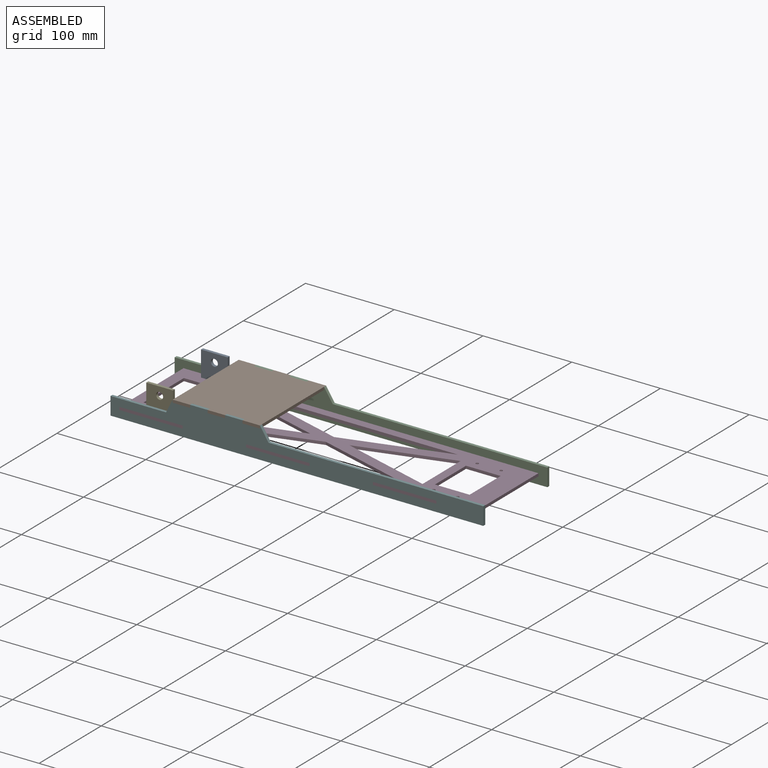
[diagram: assembled view]
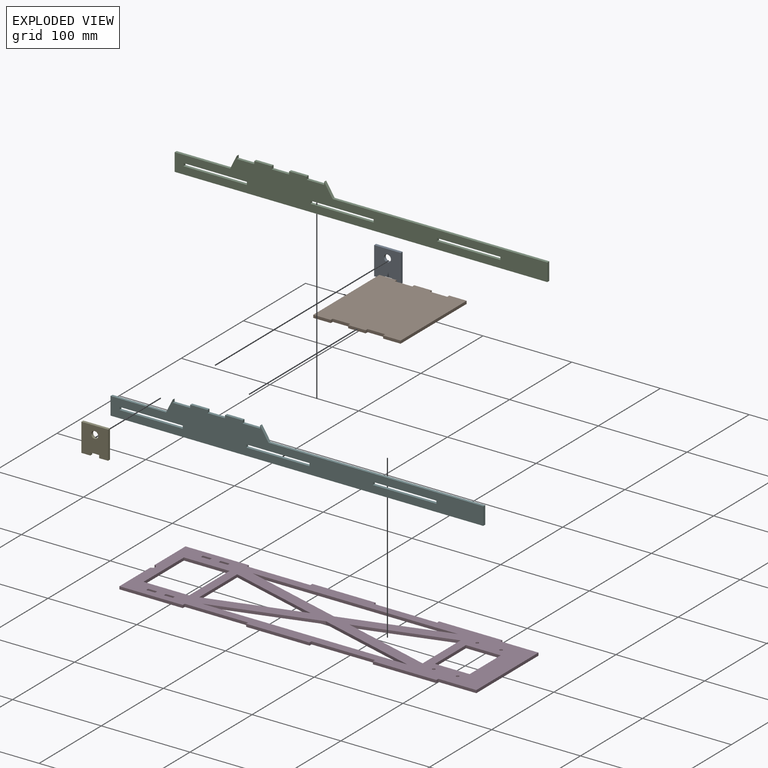
[diagram: exploded view]
GUIDED TOUR — MATED ASSEMBLY (Onshape document d849d121dfd26ec1d9eef098, AutoMate assembly d849d121dfd26ec1d9eef098_76168d8b41141996602a5c66_155ecb93dddd94bb37e16aa6_default)

This assembly has 6 components, labeled P0..P5 below (a component is one placed occurrence of a part; the same part can appear more than once), held together by 5 mates. A mate is a constraint between two components; its type names the relative motion it leaves free:
  FASTENED — locks the two components together rigidly (no relative motion).
Axis/direction vectors are unit vectors and 'through' points are millimeter coordinates, both in the assembly's world frame.

MATES
  1. FASTENED "Fastened 1": P3 <-> P2, direction (0.000, 0.000, 1.000) through (-277.78, 48.72, 194.01) mm
  2. FASTENED "Fastened 4": P4 <-> P3, direction (0.000, -1.000, 0.000) through (-294.20, -50.13, 190.83) mm
  3. FASTENED "Fastened 3": P0 <-> P3, direction (0.000, -1.000, 0.000) through (-324.20, 38.05, 190.83) mm
  4. FASTENED "Fastened 2": P5 <-> P3, direction (0.000, 0.000, -1.000) through (-277.78, -57.63, 194.01) mm
  5. FASTENED "Fastened 5": P1 <-> P2, direction (0.000, 0.000, -1.000) through (-289.21, 48.72, 214.24) mm

ASSEMBLY ORDER
  1. P5 — the base component [order verified]
  2. P1 [order verified]
  3. P2 [order verified]
  4. P3 [order verified]
  5. P4 [order verified]
  6. P0 [order verified]
Order-tag legend:
  [order verified] — this step's position reverses a verified removal order: the component was checked to insert without passing through the ones already placed.

Of the 6 components, 6 carry the full construction recipe — the FeatureScript program that regenerates the part's solid from scratch; the rest are supplied as boundary geometry only.
Each toured component is shown spotlighted twice — in the assembled view, then in the exploded view, where a leader line traces a displaced component back to its assembled socket (saturated green if recipe-attached, orange if geometry-only; every other component desaturated gray) — followed by its recipe or geometry summary and the mates that hold it.
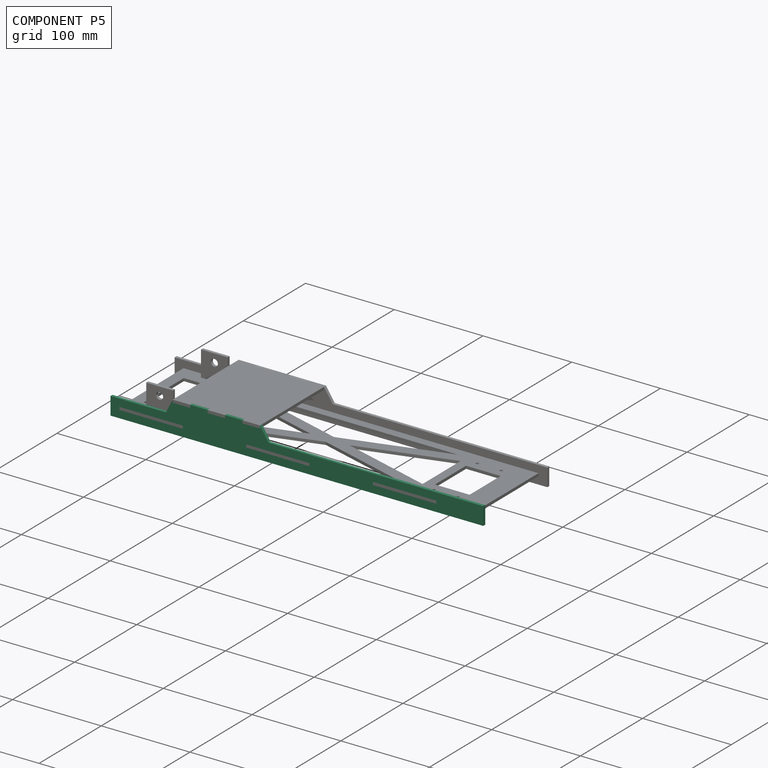
[diagram: component P5 — assembled]
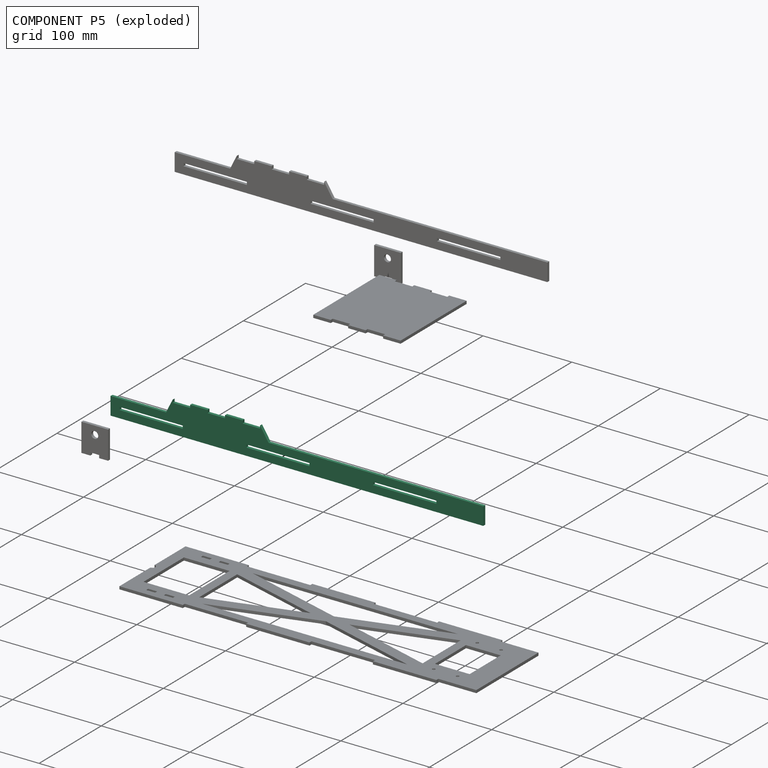
[diagram: component P5 — exploded]
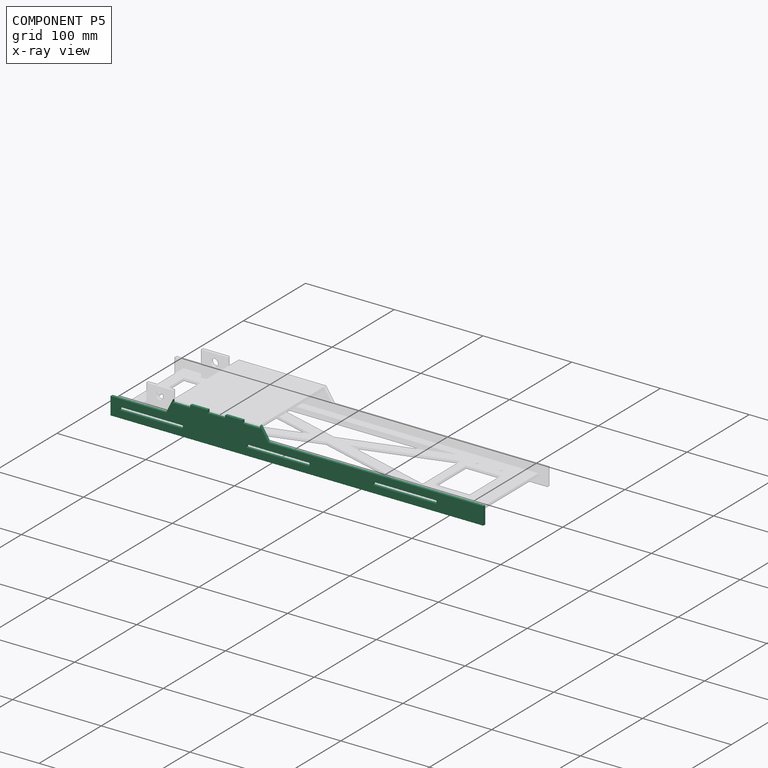
[diagram: component P5 — x-ray view]
COMPONENT P5 — same part as P2 (CADFS 00982040); its construction recipe is shown at P2.
Held by: FASTENED mate "Fastened 2" to P3.
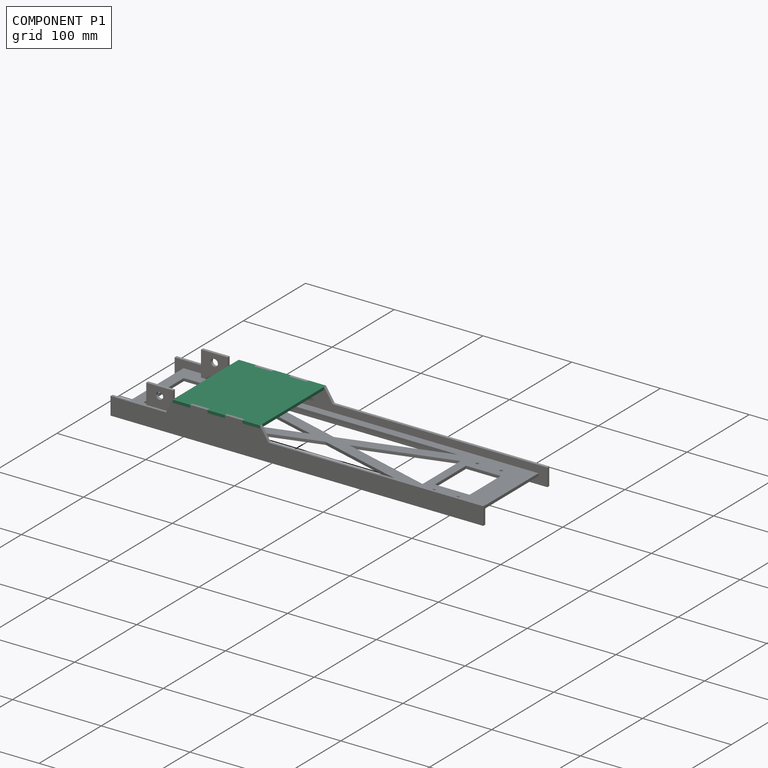
[diagram: component P1 — assembled]
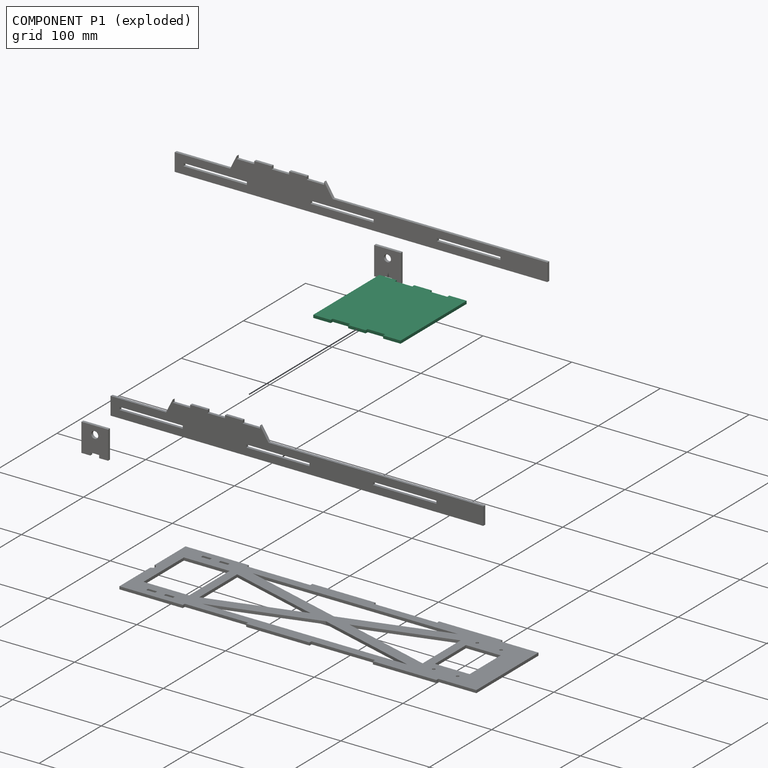
[diagram: component P1 — exploded]
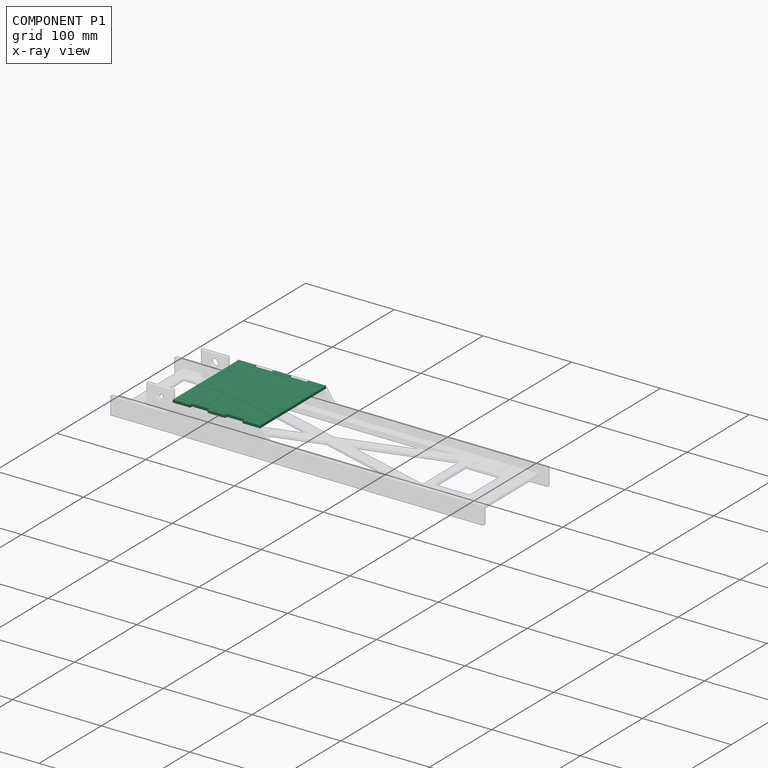
[diagram: component P1 — x-ray view]
COMPONENT P1 — recipe-attached (CADFS 00982042, mesh-verified: the recipe's output STEP matches this component's geometry to below the mesh-comparison resolution (tessellation chordal tolerance ~0.217 mm)).
Held by: FASTENED mate "Fastened 5" to P2.
Construction recipe (FeatureScript — the CAD program that rebuilds this solid; sketch coordinates are in the units given by the * unit suffixes, e.g. mm):

FeatureScript 1511;
import(path : "onshape/std/geometry.fs", version : "1511.0");
import(path : "onshape/std/common.fs", version : "1511.0");
const mm = millimeter;
const VERTEX = EntityType.VERTEX;
const EDGE = EntityType.EDGE;
const FACE = EntityType.FACE;
const BODY = EntityType.BODY;
function v(x, y){return vector(x, y);}
function OD(order){return orderDisambiguation(order);}
function OSD(set){return originalSetDisambiguation(set);}
function TD(topology){return topologyDisambiguation(topology);}
function TDD(query){return trueDependencyDisambiguation(query);}
function sQuery(a, b, c) {return sketchEntityQuery(a, b, c);}

annotation { "Feature Type Name" : "Feature", "Feature Type Description" : "" }
export const myFeature = defineFeature(function(context is Context, id is Id, definition is map)
    precondition{}
    {
        {
            var Q0;
            Q0=qCreatedBy(makeId("Top.planeOp"),FACE);
            var sketch = newSketch(context, id + "F0", { "sketchPlane" : qUnion([Q0])});
            skLineSegment(sketch, "E0.bottom", {"start": v(49.21, -65) * mm, "end": v(-49.21, -65) * mm, "construction": true});
            skLineSegment(sketch, "E0.top", {"start": v(49.21, 35) * mm, "end": v(-49.21, 35) * mm, "construction": true});
            skPoint(sketch, "E0.middle", {"position": v(0, 0) * mm});
            skLineSegment(sketch, "E1.top", {"start": v(-49.21, 38.17) * mm, "end": v(-29.53, 38.17) * mm});
            skLineSegment(sketch, "E1.left", {"start": v(-49.21, 35) * mm, "end": v(-49.21, 38.17) * mm});
            skLineSegment(sketch, "E1.right", {"start": v(-29.53, 35) * mm, "end": v(-29.53, 38.17) * mm});
            skLineSegment(sketch, "E2.top", {"start": v(49.21, 38.18) * mm, "end": v(29.53, 38.18) * mm});
            skLineSegment(sketch, "E2.left", {"start": v(49.21, 35) * mm, "end": v(49.21, 38.18) * mm});
            skLineSegment(sketch, "E2.right", {"start": v(29.53, 35) * mm, "end": v(29.53, 38.18) * mm});
            skLineSegment(sketch, "E3.top", {"start": v(-9.84, 38.18) * mm, "end": v(9.84, 38.18) * mm});
            skLineSegment(sketch, "E3.left", {"start": v(-9.84, 35) * mm, "end": v(-9.84, 38.18) * mm});
            skLineSegment(sketch, "E3.right", {"start": v(9.84, 35) * mm, "end": v(9.84, 38.18) * mm});
            skLineSegment(sketch, "E4", {"start": v(-29.53, 35) * mm, "end": v(-9.84, 35) * mm});
            skLineSegment(sketch, "E5", {"start": v(9.84, 35) * mm, "end": v(29.53, 35) * mm});
            skLineSegment(sketch, "E6.MirrorCS", {"start": v(-49.21, -65) * mm, "end": v(-49.21, -68.17) * mm});
            skLineSegment(sketch, "E7.MirrorCS", {"start": v(29.53, -65) * mm, "end": v(29.53, -68.18) * mm});
            skLineSegment(sketch, "E8.MirrorCS", {"start": v(-9.84, -65) * mm, "end": v(-9.84, -68.18) * mm});
            skLineSegment(sketch, "E9.MirrorCS", {"start": v(-29.53, -65) * mm, "end": v(-29.53, -68.17) * mm});
            skLineSegment(sketch, "E10.MirrorCS", {"start": v(9.84, -65) * mm, "end": v(9.84, -68.18) * mm});
            skLineSegment(sketch, "E11.MirrorCS", {"start": v(49.21, -65) * mm, "end": v(49.21, -68.18) * mm});
            skLineSegment(sketch, "E12.MirrorCS", {"start": v(9.84, -65) * mm, "end": v(29.53, -65) * mm});
            skLineSegment(sketch, "E13.MirrorCS", {"start": v(-29.53, -65) * mm, "end": v(-9.84, -65) * mm});
            skLineSegment(sketch, "E14.MirrorCS", {"start": v(49.21, -68.18) * mm, "end": v(29.53, -68.17) * mm});
            skLineSegment(sketch, "E15.MirrorCS", {"start": v(-49.21, -68.17) * mm, "end": v(-29.53, -68.17) * mm});
            skLineSegment(sketch, "E16.MirrorCS", {"start": v(-9.84, -68.18) * mm, "end": v(9.84, -68.18) * mm});
            skLineSegment(sketch, "E17", {"start": v(-49.21, 35) * mm, "end": v(-49.21, -65) * mm});
            skLineSegment(sketch, "E18", {"start": v(49.21, 35) * mm, "end": v(49.21, -65) * mm});
            skSolve(sketch);
        }
        {
            var Q0;
            Q0 = qSketchRegion(id + "F0", true);
            extrude(context, id + "F1", {"entities" : qUnion([Q0]), "depth" : 3.17 * mm, "offsetDistance" : 25 * mm});
        }
    });
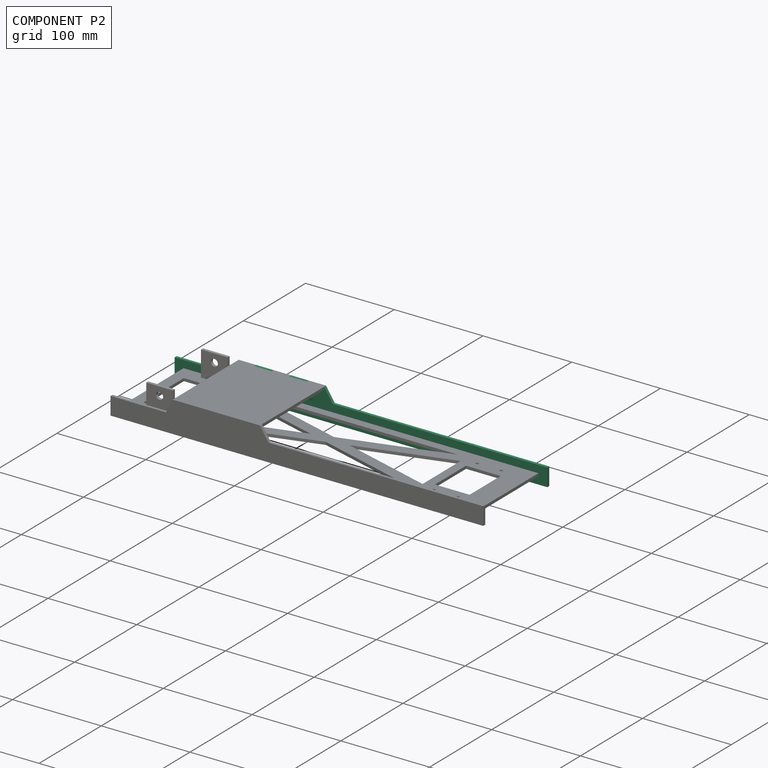
[diagram: component P2 — assembled]
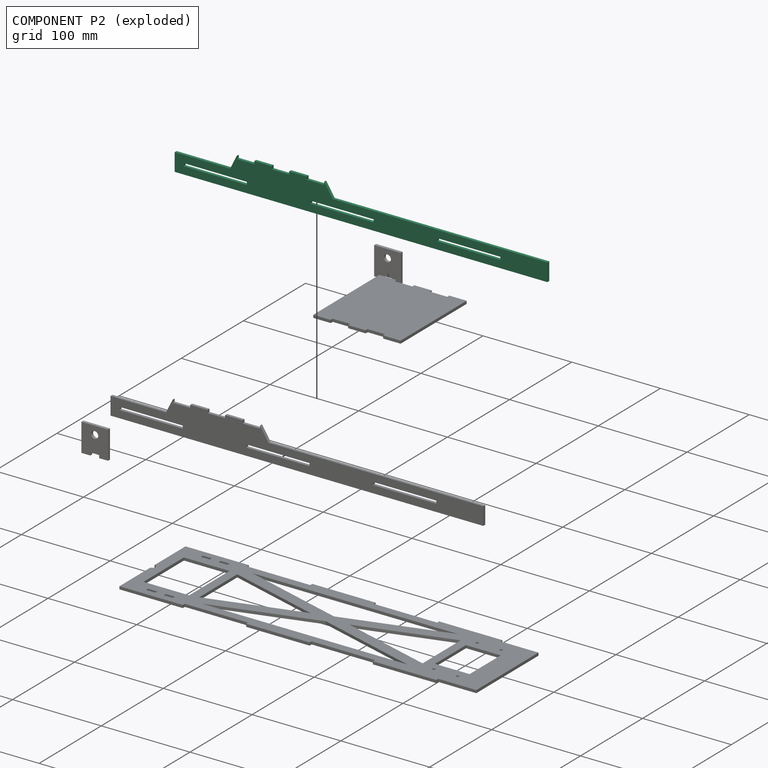
[diagram: component P2 — exploded]
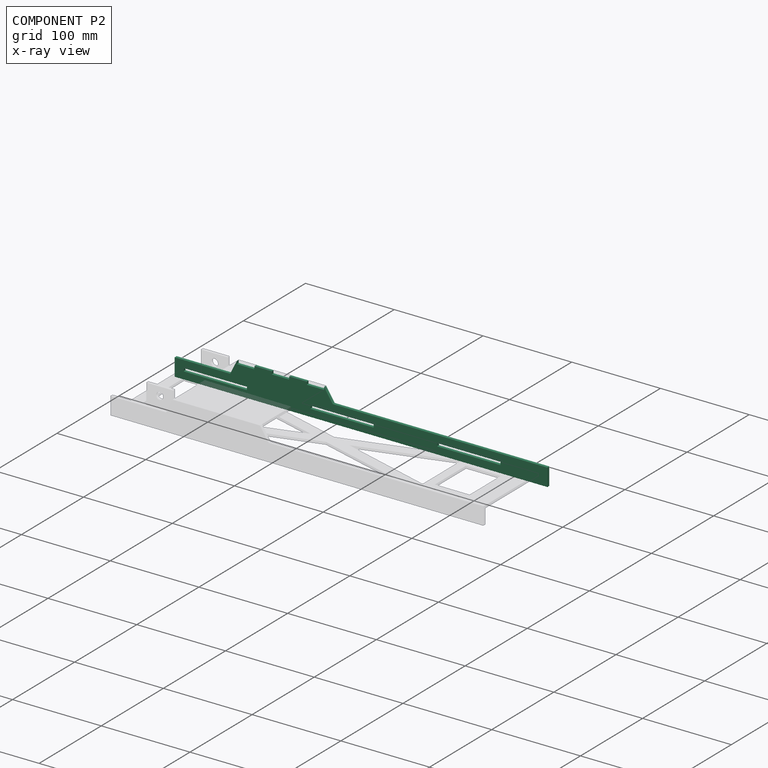
[diagram: component P2 — x-ray view]
COMPONENT P2 — recipe-attached (CADFS 00982040, mesh-verified: the recipe's output STEP matches this component's geometry to below the mesh-comparison resolution (tessellation chordal tolerance ~0.632 mm)).
Held by: FASTENED mate "Fastened 1" to P3; FASTENED mate "Fastened 5" to P1.
Construction recipe (FeatureScript — the CAD program that rebuilds this solid; sketch coordinates are in the units given by the * unit suffixes, e.g. mm):

FeatureScript 1511;
import(path : "onshape/std/geometry.fs", version : "1511.0");
import(path : "onshape/std/common.fs", version : "1511.0");
const mm = millimeter;
const VERTEX = EntityType.VERTEX;
const EDGE = EntityType.EDGE;
const FACE = EntityType.FACE;
const BODY = EntityType.BODY;
function v(x, y){return vector(x, y);}
function OD(order){return orderDisambiguation(order);}
function OSD(set){return originalSetDisambiguation(set);}
function TD(topology){return topologyDisambiguation(topology);}
function TDD(query){return trueDependencyDisambiguation(query);}
function sQuery(a, b, c) {return sketchEntityQuery(a, b, c);}

annotation { "Feature Type Name" : "Feature", "Feature Type Description" : "" }
export const myFeature = defineFeature(function(context is Context, id is Id, definition is map)
    precondition{}
    {
        {
            var Q0;
            Q0=qCreatedBy(makeId("Front.planeOp"),FACE);
            var sketch = newSketch(context, id + "F0", { "sketchPlane" : qUnion([Q0])});
            skLineSegment(sketch, "E0.right", {"start": v(-260, -10) * mm, "end": v(-260, 10) * mm});
            skPoint(sketch, "E0.middle", {"position": v(0, 0) * mm});
            skLineSegment(sketch, "E1.bottom", {"start": v(35.71, -1.59) * mm, "end": v(-35.71, -1.59) * mm, "construction": true});
            skLineSegment(sketch, "E1.top", {"start": v(35.71, 1.59) * mm, "end": v(-35.71, 1.59) * mm, "construction": true});
            skLineSegment(sketch, "E1.left", {"start": v(35.71, -1.59) * mm, "end": v(35.71, 1.59) * mm, "construction": true});
            skLineSegment(sketch, "E1.right", {"start": v(-35.71, -1.59) * mm, "end": v(-35.71, 1.59) * mm});
            skLineSegment(sketch, "E2.1.0.0", {"start": v(107.14, 1.59) * mm, "end": v(35.71, 1.59) * mm});
            skLineSegment(sketch, "E2.1.0.1", {"start": v(107.14, -1.59) * mm, "end": v(35.71, -1.59) * mm});
            skLineSegment(sketch, "E2.1.0.2", {"start": v(107.14, -1.59) * mm, "end": v(107.14, 1.59) * mm});
            skLineSegment(sketch, "E2.1.0.3", {"start": v(35.71, -1.59) * mm, "end": v(35.71, 1.59) * mm});
            skLineSegment(sketch, "E2.2.0.0", {"start": v(178.57, 1.59) * mm, "end": v(107.14, 1.59) * mm, "construction": true});
            skLineSegment(sketch, "E2.2.0.1", {"start": v(178.57, -1.59) * mm, "end": v(107.14, -1.59) * mm, "construction": true});
            skLineSegment(sketch, "E2.2.0.3", {"start": v(107.14, -1.59) * mm, "end": v(107.14, 1.59) * mm, "construction": true});
            skLineSegment(sketch, "E2.direction1", {"start": v(-35.71, -1.59) * mm, "end": v(35.71, -1.59) * mm, "construction": true});
            skLineSegment(sketch, "E3.MirrorCS", {"start": v(-250, -1.59) * mm, "end": v(-250, 1.59) * mm});
            skLineSegment(sketch, "E4.MirrorCS", {"start": v(-178.57, -1.59) * mm, "end": v(-178.57, 1.59) * mm});
            skLineSegment(sketch, "E5.MirrorCS", {"start": v(-250, -1.59) * mm, "end": v(-178.57, -1.59) * mm});
            skLineSegment(sketch, "E6.MirrorCS", {"start": v(-250, 1.59) * mm, "end": v(-178.57, 1.59) * mm});
            skLineSegment(sketch, "E7.MirrorCS", {"start": v(-107.14, -1.59) * mm, "end": v(-107.14, 1.59) * mm});
            skLineSegment(sketch, "E8.MirrorCS", {"start": v(-35.71, -1.59) * mm, "end": v(-35.71, 1.59) * mm, "construction": true});
            skLineSegment(sketch, "E9.MirrorCS", {"start": v(-107.14, 1.59) * mm, "end": v(-35.71, 1.59) * mm});
            skLineSegment(sketch, "E10.MirrorCS", {"start": v(-107.14, -1.59) * mm, "end": v(-35.71, -1.59) * mm});
            skLineSegment(sketch, "E11.bottom", {"start": v(-250, -5.81) * mm, "end": v(150, -5.81) * mm, "construction": true});
            skLineSegment(sketch, "E12", {"start": v(-35.71, 1.59) * mm, "end": v(-35.71, 33.6) * mm, "construction": true});
            skLineSegment(sketch, "E13", {"start": v(-190, 25) * mm, "end": v(-190, 10) * mm});
            skLineSegment(sketch, "E14", {"start": v(-91.58, 25) * mm, "end": v(-91.58, 10) * mm});
            skLineSegment(sketch, "E15", {"start": v(-170.32, 25) * mm, "end": v(-170.32, 21.83) * mm});
            skLineSegment(sketch, "E16", {"start": v(-150.63, 21.83) * mm, "end": v(-150.63, 25) * mm});
            skLineSegment(sketch, "E17", {"start": v(-130.95, 25) * mm, "end": v(-130.95, 21.83) * mm});
            skLineSegment(sketch, "E18", {"start": v(-111.26, 21.83) * mm, "end": v(-111.26, 25) * mm});
            skLineSegment(sketch, "E19", {"start": v(-190, 25) * mm, "end": v(-197.49, 10) * mm});
            skLineSegment(sketch, "E20", {"start": v(-150.63, 23.41) * mm, "end": v(-130.95, 23.41) * mm, "construction": true});
            skLineSegment(sketch, "E21.MirrorCS", {"start": v(-130.95, 21.83) * mm, "end": v(-130.95, 25) * mm});
            skLineSegment(sketch, "E22.MirrorCS", {"start": v(-150.63, 25) * mm, "end": v(-150.63, 21.83) * mm});
            skLineSegment(sketch, "E23.MirrorCS", {"start": v(-111.26, 21.83) * mm, "end": v(-91.58, 21.82) * mm});
            skLineSegment(sketch, "E24.MirrorCS", {"start": v(-190, 21.82) * mm, "end": v(-170.32, 21.82) * mm});
            skLineSegment(sketch, "E25.MirrorCS", {"start": v(-150.63, 21.83) * mm, "end": v(-130.95, 21.83) * mm});
            skLineSegment(sketch, "E26.MirrorCS", {"start": v(-170.32, 25) * mm, "end": v(-150.63, 25) * mm});
            skLineSegment(sketch, "E27.MirrorCS", {"start": v(-111.26, 25) * mm, "end": v(-111.26, 21.83) * mm});
            skLineSegment(sketch, "E28.MirrorCS", {"start": v(-130.95, 25) * mm, "end": v(-111.26, 25) * mm});
            skLineSegment(sketch, "E29.MirrorCS", {"start": v(-170.32, 21.82) * mm, "end": v(-170.32, 25) * mm});
            skLineSegment(sketch, "E30", {"start": v(-190, 25) * mm, "end": v(-91.58, 25) * mm, "construction": true});
            skLineSegment(sketch, "E31", {"start": v(-91.58, 25) * mm, "end": v(-81.9, 10) * mm});
            skLineSegment(sketch, "E32", {"start": v(150, -5.81) * mm, "end": v(150, 10) * mm, "construction": true});
            skLineSegment(sketch, "E33", {"start": v(160, 10) * mm, "end": v(160, -10) * mm});
            skLineSegment(sketch, "E34", {"start": v(-260, -10) * mm, "end": v(160, -10) * mm});
            skLineSegment(sketch, "E35", {"start": v(-260, 10) * mm, "end": v(160, 10) * mm});
            skSolve(sketch);
        }
        {
            var Q0;
            Q0 = qSketchRegion(id + "F0", true);
            extrude(context, id + "F1", {"entities" : qUnion([Q0]), "depth" : 3.17 * mm, "offsetDistance" : 25 * mm});
        }
    });
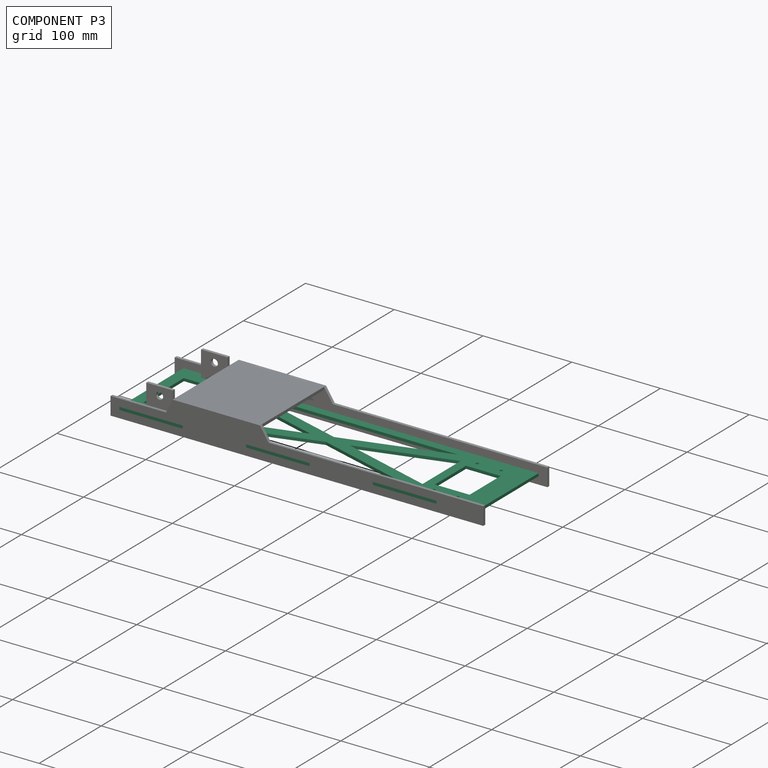
[diagram: component P3 — assembled]
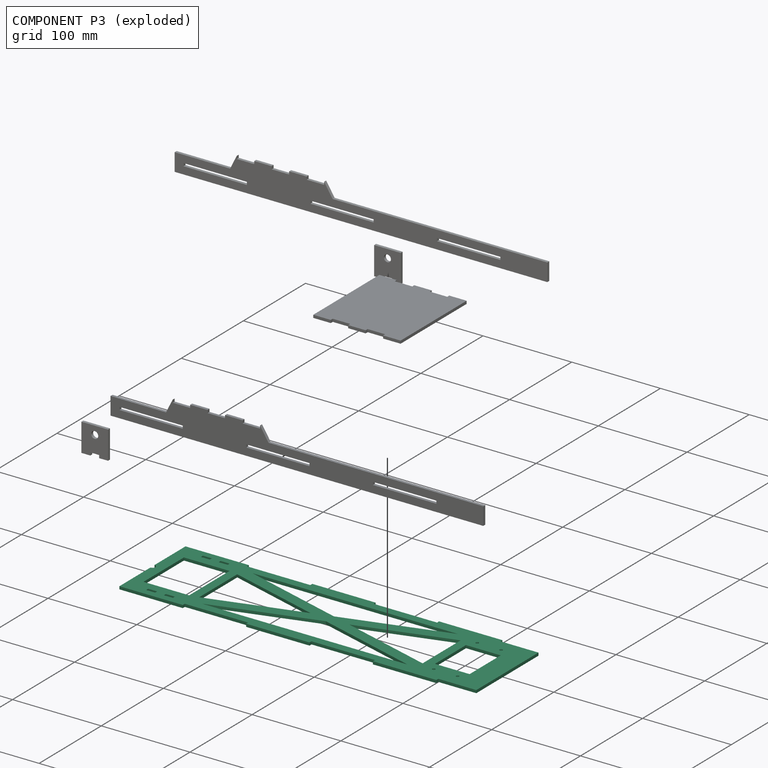
[diagram: component P3 — exploded]
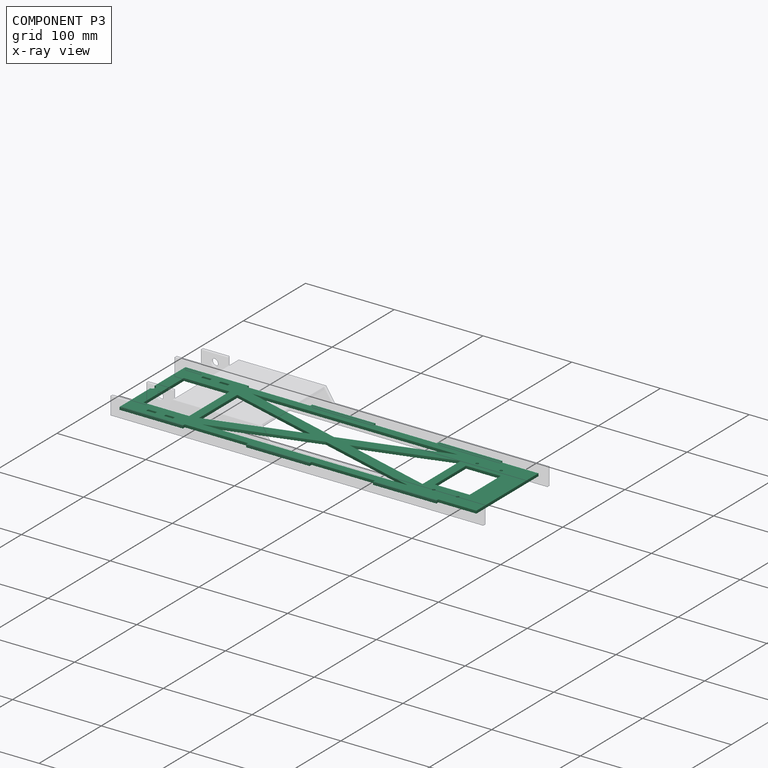
[diagram: component P3 — x-ray view]
COMPONENT P3 — recipe-attached (CADFS 00982035, mesh-verified: the recipe's output STEP matches this component's geometry to below the mesh-comparison resolution (tessellation chordal tolerance ~0.621 mm)).
Held by: FASTENED mate "Fastened 1" to P2; FASTENED mate "Fastened 4" to P4; FASTENED mate "Fastened 3" to P0; FASTENED mate "Fastened 2" to P5.
Construction recipe (FeatureScript — the CAD program that rebuilds this solid; sketch coordinates are in the units given by the * unit suffixes, e.g. mm):

FeatureScript 1511;
import(path : "onshape/std/geometry.fs", version : "1511.0");
import(path : "onshape/std/common.fs", version : "1511.0");
const mm = millimeter;
const VERTEX = EntityType.VERTEX;
const EDGE = EntityType.EDGE;
const FACE = EntityType.FACE;
const BODY = EntityType.BODY;
function v(x, y){return vector(x, y);}
function OD(order){return orderDisambiguation(order);}
function OSD(set){return originalSetDisambiguation(set);}
function TD(topology){return topologyDisambiguation(topology);}
function TDD(query){return trueDependencyDisambiguation(query);}
function sQuery(a, b, c) {return sketchEntityQuery(a, b, c);}

annotation { "Feature Type Name" : "Feature", "Feature Type Description" : "" }
export const myFeature = defineFeature(function(context is Context, id is Id, definition is map)
    precondition{}
    {
        {
            var Q0;
            Q0=qCreatedBy(makeId("Front.planeOp"),FACE);
            var sketch = newSketch(context, id + "F0", { "sketchPlane" : qUnion([Q0])});
            skLineSegment(sketch, "E0.bottom", {"start": v(122.16, -35.2) * mm, "end": v(-277.84, -35.2) * mm, "construction": true});
            skLineSegment(sketch, "E0.top", {"start": v(122.16, 64.8) * mm, "end": v(-277.84, 64.8) * mm, "construction": true});
            skLineSegment(sketch, "E0.left", {"start": v(122.16, -35.2) * mm, "end": v(122.16, 64.8) * mm});
            skLineSegment(sketch, "E0.right", {"start": v(-277.84, -35.2) * mm, "end": v(-277.84, 64.8) * mm});
            skLineSegment(sketch, "E1", {"start": v(-237.84, 42.25) * mm, "end": v(-233.84, 42.25) * mm, "construction": true});
            skLineSegment(sketch, "E2", {"start": v(-237.84, 42.25) * mm, "end": v(-237.84, 46.25) * mm, "construction": true});
            skLineSegment(sketch, "E3", {"start": v(-237.84, -12.65) * mm, "end": v(-233.84, -12.65) * mm, "construction": true});
            skLineSegment(sketch, "E4", {"start": v(-237.84, -12.65) * mm, "end": v(-237.84, -8.65) * mm, "construction": true});
            skCircle(sketch, "E5", {"center": v(77.16, -20.2) * mm, "radius": 4 * mm, "construction": true});
            skLineSegment(sketch, "E6", {"start": v(77.16, -20.2) * mm, "end": v(81.16, -20.2) * mm, "construction": true});
            skLineSegment(sketch, "E7", {"start": v(77.16, -20.2) * mm, "end": v(77.16, -16.2) * mm, "construction": true});
            skCircle(sketch, "E8", {"center": v(90.63, -20.2) * mm, "radius": 1.64 * mm});
            skCircle(sketch, "E9.MirrorC", {"center": v(63.68, -20.2) * mm, "radius": 1.64 * mm});
            skCircle(sketch, "E10", {"center": v(77.16, 49.8) * mm, "radius": 4 * mm, "construction": true});
            skLineSegment(sketch, "E11", {"start": v(77.16, 49.8) * mm, "end": v(81.16, 49.8) * mm, "construction": true});
            skLineSegment(sketch, "E12", {"start": v(77.16, 49.8) * mm, "end": v(77.16, 53.8) * mm, "construction": true});
            skCircle(sketch, "E13", {"center": v(90.63, 49.8) * mm, "radius": 1.64 * mm});
            skCircle(sketch, "E14.MirrorC", {"center": v(63.68, 49.8) * mm, "radius": 1.64 * mm});
            skPoint(sketch, "E15.middle.positionSnap0", {"position": v(-237.84, -10.65) * mm});
            skPoint(sketch, "E15.centerSnap0", {"position": v(-237.84, -10.65) * mm});
            skLineSegment(sketch, "E16", {"start": v(-77.84, 64.8) * mm, "end": v(-77.84, -35.2) * mm, "construction": true});
            skLineSegment(sketch, "E17", {"start": v(-77.84, 14.8) * mm, "end": v(-277.84, 14.8) * mm, "construction": true});
            skLineSegment(sketch, "E18.right", {"start": v(-265.14, -17.7) * mm, "end": v(-265.14, 47.3) * mm});
            skLineSegment(sketch, "E19", {"start": v(-77.84, 14.8) * mm, "end": v(122.16, 14.8) * mm, "construction": true});
            skLineSegment(sketch, "E20.right", {"start": v(97.09, 39.8) * mm, "end": v(97.09, -10.2) * mm});
            skLineSegment(sketch, "E21.right", {"start": v(-213.71, 47.3) * mm, "end": v(-213.71, -17.7) * mm});
            skLineSegment(sketch, "E22", {"start": v(-265.14, 47.3) * mm, "end": v(-213.71, 47.3) * mm});
            skLineSegment(sketch, "E23", {"start": v(-265.14, -17.7) * mm, "end": v(-213.71, -17.7) * mm});
            skLineSegment(sketch, "E24.right", {"start": v(58.02, 39.8) * mm, "end": v(58.02, -10.2) * mm});
            skLineSegment(sketch, "E25", {"start": v(58.02, 39.8) * mm, "end": v(97.09, 39.8) * mm});
            skLineSegment(sketch, "E26", {"start": v(58.02, -10.2) * mm, "end": v(97.09, -10.2) * mm});
            skLineSegment(sketch, "E27.top", {"start": v(-277.84, -38.38) * mm, "end": v(-206.41, -38.38) * mm});
            skLineSegment(sketch, "E27.left", {"start": v(-277.84, -35.2) * mm, "end": v(-277.84, -38.38) * mm});
            skLineSegment(sketch, "E27.right", {"start": v(-206.41, -35.2) * mm, "end": v(-206.41, -38.38) * mm});
            skLineSegment(sketch, "E28.bottom", {"start": v(-206.41, -35.2) * mm, "end": v(-134.99, -35.2) * mm});
            skLineSegment(sketch, "E29.1.0.0", {"start": v(-134.99, -38.38) * mm, "end": v(-63.56, -38.38) * mm});
            skLineSegment(sketch, "E29.1.0.1", {"start": v(-63.56, -35.2) * mm, "end": v(7.87, -35.2) * mm});
            skLineSegment(sketch, "E29.1.0.2", {"start": v(-134.99, -35.2) * mm, "end": v(-134.99, -38.38) * mm});
            skLineSegment(sketch, "E29.1.0.3", {"start": v(-63.56, -35.2) * mm, "end": v(-63.56, -38.38) * mm});
            skLineSegment(sketch, "E29.1.0.4", {"start": v(-63.56, -35.2) * mm, "end": v(-63.56, -38.38) * mm});
            skLineSegment(sketch, "E29.2.0.0", {"start": v(7.87, -38.38) * mm, "end": v(79.3, -38.38) * mm});
            skLineSegment(sketch, "E29.2.0.2", {"start": v(7.87, -35.2) * mm, "end": v(7.87, -38.38) * mm});
            skLineSegment(sketch, "E29.direction1", {"start": v(-277.84, -38.38) * mm, "end": v(-134.99, -38.38) * mm, "construction": true});
            skLineSegment(sketch, "E30.MirrorCS", {"start": v(-63.56, 64.8) * mm, "end": v(-63.56, 67.97) * mm});
            skLineSegment(sketch, "E31.MirrorCS", {"start": v(-206.41, 64.8) * mm, "end": v(-206.41, 67.97) * mm});
            skLineSegment(sketch, "E32.MirrorCS", {"start": v(-134.99, 64.8) * mm, "end": v(-134.99, 67.97) * mm});
            skLineSegment(sketch, "E33.MirrorCS", {"start": v(-277.84, 64.8) * mm, "end": v(-277.84, 67.97) * mm});
            skLineSegment(sketch, "E34.MirrorCS", {"start": v(7.87, 64.8) * mm, "end": v(7.87, 67.97) * mm});
            skLineSegment(sketch, "E35.MirrorCS", {"start": v(-63.56, 64.8) * mm, "end": v(7.87, 64.8) * mm});
            skLineSegment(sketch, "E36.MirrorCS", {"start": v(-277.84, 67.97) * mm, "end": v(-206.41, 67.97) * mm});
            skLineSegment(sketch, "E37.MirrorCS", {"start": v(-206.41, 64.8) * mm, "end": v(-134.99, 64.8) * mm});
            skLineSegment(sketch, "E38.MirrorCS", {"start": v(7.87, 67.97) * mm, "end": v(79.3, 67.97) * mm});
            skLineSegment(sketch, "E39.MirrorCS", {"start": v(-277.84, 67.97) * mm, "end": v(-134.99, 67.97) * mm, "construction": true});
            skLineSegment(sketch, "E40.MirrorCS", {"start": v(-134.99, 67.97) * mm, "end": v(-63.56, 67.97) * mm});
            skLineSegment(sketch, "E41.MirrorCS", {"start": v(-222.83, -27.7) * mm, "end": v(-226, -27.7) * mm});
            skCircle(sketch, "E42.MirrorC", {"center": v(-237.83, -12.65) * mm, "radius": 2.35 * mm, "construction": true});
            skLineSegment(sketch, "E43.bottom", {"start": v(-252.83, -27.7) * mm, "end": v(-242.83, -27.7) * mm});
            skLineSegment(sketch, "E43.top", {"start": v(-252.83, -30.88) * mm, "end": v(-242.83, -30.88) * mm});
            skLineSegment(sketch, "E43.left", {"start": v(-252.83, -27.7) * mm, "end": v(-252.83, -30.88) * mm});
            skLineSegment(sketch, "E43.right", {"start": v(-242.83, -27.7) * mm, "end": v(-242.83, -30.88) * mm});
            skLineSegment(sketch, "E44.bottom", {"start": v(-222.83, -27.7) * mm, "end": v(-232.83, -27.7) * mm});
            skLineSegment(sketch, "E44.top", {"start": v(-222.83, -30.88) * mm, "end": v(-232.83, -30.88) * mm});
            skLineSegment(sketch, "E44.left", {"start": v(-222.83, -27.7) * mm, "end": v(-222.83, -30.88) * mm});
            skLineSegment(sketch, "E44.right", {"start": v(-232.83, -27.7) * mm, "end": v(-232.83, -30.88) * mm});
            skLineSegment(sketch, "E45.MirrorCS", {"start": v(-252.83, 57.3) * mm, "end": v(-252.83, 60.47) * mm});
            skLineSegment(sketch, "E46.MirrorCS", {"start": v(-222.83, 57.3) * mm, "end": v(-222.83, 60.47) * mm});
            skLineSegment(sketch, "E47.MirrorCS", {"start": v(-252.83, 60.47) * mm, "end": v(-242.83, 60.47) * mm});
            skLineSegment(sketch, "E48.MirrorCS", {"start": v(-222.83, 57.3) * mm, "end": v(-232.83, 57.3) * mm});
            skLineSegment(sketch, "E49.MirrorCS", {"start": v(-222.83, 60.47) * mm, "end": v(-232.83, 60.47) * mm});
            skCircle(sketch, "E50.MirrorC", {"center": v(-237.83, 42.25) * mm, "radius": 2.35 * mm, "construction": true});
            skLineSegment(sketch, "E51.MirrorCS", {"start": v(-252.83, 57.3) * mm, "end": v(-242.83, 57.3) * mm});
            skLineSegment(sketch, "E52.MirrorCS", {"start": v(-232.83, 57.3) * mm, "end": v(-232.83, 60.47) * mm});
            skLineSegment(sketch, "E53.MirrorCS", {"start": v(-242.83, 57.3) * mm, "end": v(-242.83, 60.47) * mm});
            skLineSegment(sketch, "E54", {"start": v(79.3, 67.97) * mm, "end": v(79.3, 64.8) * mm});
            skLineSegment(sketch, "E55", {"start": v(79.3, 64.8) * mm, "end": v(122.16, 64.8) * mm});
            skLineSegment(sketch, "E56", {"start": v(79.3, -38.38) * mm, "end": v(79.3, -35.2) * mm});
            skLineSegment(sketch, "E57", {"start": v(79.3, -35.2) * mm, "end": v(122.16, -35.2) * mm});
            skCircle(sketch, "E58", {"center": v(-277.84, 14.8) * mm, "radius": 3.3 * mm});
            skLineSegment(sketch, "E59.bottom", {"start": v(48.02, -25.83) * mm, "end": v(-203.71, -25.83) * mm});
            skLineSegment(sketch, "E59.top", {"start": v(48.02, 55.43) * mm, "end": v(-203.71, 55.43) * mm});
            skLineSegment(sketch, "E59.left", {"start": v(48.02, -25.83) * mm, "end": v(48.02, 55.43) * mm});
            skLineSegment(sketch, "E59.right", {"start": v(-203.71, -25.83) * mm, "end": v(-203.71, 55.43) * mm});
            skPoint(sketch, "E59.middle", {"position": v(-77.84, 14.8) * mm});
            skLineSegment(sketch, "E60", {"start": v(-203.71, 45.43) * mm, "end": v(38.02, -25.83) * mm});
            skLineSegment(sketch, "E61", {"start": v(-193.71, 55.43) * mm, "end": v(48.02, -15.83) * mm});
            skLineSegment(sketch, "E62.MirrorCS", {"start": v(38.02, 55.43) * mm, "end": v(-203.71, -15.83) * mm});
            skLineSegment(sketch, "E63.MirrorCS", {"start": v(48.02, 45.43) * mm, "end": v(-193.71, -25.83) * mm});
            skSolve(sketch);
        }
        {
            var Q0;
            Q0=makeQuery(id+"F0.imprint","IMPRINT",FACE,{"disambiguationData":[TD([[makeQuery(id+"F0.imprint","IMPRINT",EDGE,{"derivedFrom":sQuery(id+"F0.wireOp",EDGE,"E0.left")}),1.0]])]});
            var Q1;
            {var subQ1=sQuery(id+"F0.wireOp",EDGE,"MHkpmrzQ-DzUS-QcDW-mqt7-D2D0C6xKMiL6.top");var subQ6=sQuery(id+"F0.wireOp",EDGE,"MHkpmrzQ-DzUS-QcDW-mqt7-D2D0C6xKMiL6.right");var subQ10=makeQuery(id+"F0.imprint","INTERSECT",VERTEX,{"derivedFrom":[subQ1,subQ6]});Q1=makeQuery(id+"F0.imprint","IMPRINT",FACE,{"disambiguationData":[TD([[makeQuery(id+"F0.imprint","IMPRINT",EDGE,{"disambiguationData":[TD([[subQ10,1.0]])],"derivedFrom":subQ1}),1.0]])]});}
            var Q2;
            {var subQ6=sQuery(id+"F0.wireOp",EDGE,"MHkpmrzQ-DzUS-QcDW-mqt7-D2D0C6xKMiL6.top");var subQ9=sQuery(id+"F0.wireOp",EDGE,"MHkpmrzQ-DzUS-QcDW-mqt7-D2D0C6xKMiL6.left");var subQ10=makeQuery(id+"F0.imprint","INTERSECT",VERTEX,{"derivedFrom":[subQ6,subQ9]});Q2=makeQuery(id+"F0.imprint","IMPRINT",FACE,{"disambiguationData":[TD([[makeQuery(id+"F0.imprint","IMPRINT",EDGE,{"disambiguationData":[TD([[subQ10,-1.0]])],"derivedFrom":subQ6}),1.0]])]});}
            var Q3;
            {var subQ0=sQuery(id+"F0.wireOp",EDGE,"7W97gwla-n0WM-y60X-97Ln-5MnTus8xXd5n");var subQ1=sQuery(id+"F0.wireOp",EDGE,"MHkpmrzQ-DzUS-QcDW-mqt7-D2D0C6xKMiL6.bottom");var subQ2=makeQuery(id+"F0.imprint","INTERSECT",VERTEX,{"derivedFrom":[subQ1,subQ0]});Q3=makeQuery(id+"F0.imprint","IMPRINT",FACE,{"disambiguationData":[TD([[makeQuery(id+"F0.imprint","IMPRINT",EDGE,{"disambiguationData":[TD([[subQ2,1.0]])],"derivedFrom":subQ1}),-1.0]])]});}
            var Q4;
            {var subQ1=sQuery(id+"F0.wireOp",EDGE,"MHkpmrzQ-DzUS-QcDW-mqt7-D2D0C6xKMiL6.right");var subQ7=sQuery(id+"F0.wireOp",EDGE,"MHkpmrzQ-DzUS-QcDW-mqt7-D2D0C6xKMiL6.bottom");var subQ8=makeQuery(id+"F0.imprint","INTERSECT",VERTEX,{"derivedFrom":[subQ7,subQ1]});Q4=makeQuery(id+"F0.imprint","IMPRINT",FACE,{"disambiguationData":[TD([[makeQuery(id+"F0.imprint","IMPRINT",EDGE,{"disambiguationData":[TD([[subQ8,1.0]])],"derivedFrom":subQ7}),-1.0]])]});}
            var Q5;
            {var subQ1=sQuery(id+"F0.wireOp",EDGE,"MHkpmrzQ-DzUS-QcDW-mqt7-D2D0C6xKMiL6.bottom");var subQ7=sQuery(id+"F0.wireOp",EDGE,"wyMJddfo-exag-QAAZ-zDEC-KmLDTo5ackwH.right");var subQ9=makeQuery(id+"F0.imprint","INTERSECT",VERTEX,{"derivedFrom":[subQ1,subQ7]});Q5=makeQuery(id+"F0.imprint","IMPRINT",FACE,{"disambiguationData":[TD([[makeQuery(id+"F0.imprint","IMPRINT",EDGE,{"disambiguationData":[TD([[subQ9,1.0]])],"derivedFrom":subQ1}),-1.0]])]});}
            var Q6;
            {var subQ0=sQuery(id+"F0.wireOp",EDGE,"wyMJddfo-exag-QAAZ-zDEC-KmLDTo5ackwH.left");var subQ1=sQuery(id+"F0.wireOp",EDGE,"7W97gwla-n0WM-y60X-97Ln-5MnTus8xXd5n");var subQ2=makeQuery(id+"F0.imprint","INTERSECT",VERTEX,{"derivedFrom":[subQ1,subQ0]});Q6=makeQuery(id+"F0.imprint","IMPRINT",FACE,{"disambiguationData":[TD([[makeQuery(id+"F0.imprint","IMPRINT",EDGE,{"disambiguationData":[TD([[subQ2,1.0]])],"derivedFrom":subQ1}),1.0]])]});}
            var Q7;
            {var subQ0=sQuery(id+"F0.wireOp",EDGE,"wyMJddfo-exag-QAAZ-zDEC-KmLDTo5ackwH.right");var subQ1=sQuery(id+"F0.wireOp",EDGE,"7W97gwla-n0WM-y60X-97Ln-5MnTus8xXd5n");var subQ2=makeQuery(id+"F0.imprint","INTERSECT",VERTEX,{"derivedFrom":[subQ1,subQ0]});Q7=makeQuery(id+"F0.imprint","IMPRINT",FACE,{"disambiguationData":[TD([[makeQuery(id+"F0.imprint","IMPRINT",EDGE,{"disambiguationData":[TD([[subQ2,-1.0]])],"derivedFrom":subQ1}),-1.0]])]});}
            var Q8;
            {var subQ0=sQuery(id+"F0.wireOp",EDGE,"wyMJddfo-exag-QAAZ-zDEC-KmLDTo5ackwH.right");var subQ1=sQuery(id+"F0.wireOp",EDGE,"7W97gwla-n0WM-y60X-97Ln-5MnTus8xXd5n");var subQ2=makeQuery(id+"F0.imprint","INTERSECT",VERTEX,{"derivedFrom":[subQ1,subQ0]});Q8=makeQuery(id+"F0.imprint","IMPRINT",FACE,{"disambiguationData":[TD([[makeQuery(id+"F0.imprint","IMPRINT",EDGE,{"disambiguationData":[TD([[subQ2,1.0]])],"derivedFrom":subQ1}),1.0]])]});}
            var Q9;
            {var subQ3=sQuery(id+"F0.wireOp",EDGE,"7W97gwla-n0WM-y60X-97Ln-5MnTus8xXd5n");var subQ9=sQuery(id+"F0.wireOp",EDGE,"wyMJddfo-exag-QAAZ-zDEC-KmLDTo5ackwH.right");var subQ10=makeQuery(id+"F0.imprint","INTERSECT",VERTEX,{"derivedFrom":[subQ3,subQ9]});Q9=makeQuery(id+"F0.imprint","IMPRINT",FACE,{"disambiguationData":[TD([[makeQuery(id+"F0.imprint","IMPRINT",EDGE,{"disambiguationData":[TD([[subQ10,-1.0]])],"derivedFrom":subQ3}),1.0]])]});}
            var Q10;
            {var subQ0=sQuery(id+"F0.wireOp",EDGE,"wyMJddfo-exag-QAAZ-zDEC-KmLDTo5ackwH.left");var subQ1=sQuery(id+"F0.wireOp",EDGE,"NQHkE6QF-ssxk-nDWH-MouS-YJdmpnpYr1Nf");var subQ2=makeQuery(id+"F0.imprint","INTERSECT",VERTEX,{"derivedFrom":[subQ1,subQ0]});Q10=makeQuery(id+"F0.imprint","IMPRINT",FACE,{"disambiguationData":[TD([[makeQuery(id+"F0.imprint","IMPRINT",EDGE,{"disambiguationData":[TD([[subQ2,1.0]])],"derivedFrom":subQ1}),1.0]])]});}
            var Q11;
            {var subQ0=sQuery(id+"F0.wireOp",EDGE,"wyMJddfo-exag-QAAZ-zDEC-KmLDTo5ackwH.right");var subQ1=sQuery(id+"F0.wireOp",EDGE,"NQHkE6QF-ssxk-nDWH-MouS-YJdmpnpYr1Nf");var subQ2=makeQuery(id+"F0.imprint","INTERSECT",VERTEX,{"derivedFrom":[subQ1,subQ0]});Q11=makeQuery(id+"F0.imprint","IMPRINT",FACE,{"disambiguationData":[TD([[makeQuery(id+"F0.imprint","IMPRINT",EDGE,{"disambiguationData":[TD([[subQ2,-1.0]])],"derivedFrom":subQ1}),-1.0]])]});}
            var Q12;
            {var subQ5=sQuery(id+"F0.wireOp",EDGE,"wyMJddfo-exag-QAAZ-zDEC-KmLDTo5ackwH.right");var subQ7=sQuery(id+"F0.wireOp",EDGE,"MHkpmrzQ-DzUS-QcDW-mqt7-D2D0C6xKMiL6.top");var subQ9=makeQuery(id+"F0.imprint","INTERSECT",VERTEX,{"derivedFrom":[subQ7,subQ5]});Q12=makeQuery(id+"F0.imprint","IMPRINT",FACE,{"disambiguationData":[TD([[makeQuery(id+"F0.imprint","IMPRINT",EDGE,{"disambiguationData":[TD([[subQ9,1.0]])],"derivedFrom":subQ7}),1.0]])]});}
            var Q13;
            {var subQ0=sQuery(id+"F0.wireOp",EDGE,"ec5e1f7f-dad6-47e2-b572-f540bd572ffd0.MirrorCS");var subQ1=sQuery(id+"F0.wireOp",EDGE,"NQHkE6QF-ssxk-nDWH-MouS-YJdmpnpYr1Nf");var subQ2=makeQuery(id+"F0.imprint","INTERSECT",VERTEX,{"derivedFrom":[subQ1,subQ0]});Q13=makeQuery(id+"F0.imprint","IMPRINT",FACE,{"disambiguationData":[TD([[makeQuery(id+"F0.imprint","IMPRINT",EDGE,{"disambiguationData":[TD([[subQ2,1.0]])],"derivedFrom":subQ1}),-1.0]])]});}
            var Q14;
            {var subQ3=sQuery(id+"F0.wireOp",EDGE,"E59.right");var subQ5=sQuery(id+"F0.wireOp",EDGE,"E59.top");var subQ6=makeQuery(id+"F0.imprint","INTERSECT",VERTEX,{"derivedFrom":[subQ5,subQ3]});Q14=makeQuery(id+"F0.imprint","IMPRINT",FACE,{"disambiguationData":[TD([[makeQuery(id+"F0.imprint","IMPRINT",EDGE,{"disambiguationData":[TD([[subQ6,1.0]])],"derivedFrom":subQ5}),1.0]])]});}
            var Q15;
            {var subQ1=sQuery(id+"F0.wireOp",EDGE,"E59.right");var subQ7=sQuery(id+"F0.wireOp",EDGE,"E59.bottom");var subQ8=makeQuery(id+"F0.imprint","INTERSECT",VERTEX,{"derivedFrom":[subQ7,subQ1]});Q15=makeQuery(id+"F0.imprint","IMPRINT",FACE,{"disambiguationData":[TD([[makeQuery(id+"F0.imprint","IMPRINT",EDGE,{"disambiguationData":[TD([[subQ8,1.0]])],"derivedFrom":subQ7}),-1.0]])]});}
            var Q16;
            {var subQ0=sQuery(id+"F0.wireOp",EDGE,"E60");var subQ1=sQuery(id+"F0.wireOp",EDGE,"E59.bottom");var subQ2=makeQuery(id+"F0.imprint","INTERSECT",VERTEX,{"derivedFrom":[subQ1,subQ0]});Q16=makeQuery(id+"F0.imprint","IMPRINT",FACE,{"disambiguationData":[TD([[makeQuery(id+"F0.imprint","IMPRINT",EDGE,{"disambiguationData":[TD([[subQ2,1.0]])],"derivedFrom":subQ1}),-1.0]])]});}
            var Q17;
            {var subQ3=sQuery(id+"F0.wireOp",EDGE,"E62.MirrorCS");var subQ5=sQuery(id+"F0.wireOp",EDGE,"E59.top");var subQ6=makeQuery(id+"F0.imprint","INTERSECT",VERTEX,{"derivedFrom":[subQ5,subQ3]});Q17=makeQuery(id+"F0.imprint","IMPRINT",FACE,{"disambiguationData":[TD([[makeQuery(id+"F0.imprint","IMPRINT",EDGE,{"disambiguationData":[TD([[subQ6,1.0]])],"derivedFrom":subQ5}),1.0]])]});}
            var Q18;
            {var subQ0=sQuery(id+"F0.wireOp",EDGE,"E63.MirrorCS");var subQ1=sQuery(id+"F0.wireOp",EDGE,"E60");var subQ2=makeQuery(id+"F0.imprint","INTERSECT",VERTEX,{"derivedFrom":[subQ1,subQ0]});Q18=makeQuery(id+"F0.imprint","IMPRINT",FACE,{"disambiguationData":[TD([[makeQuery(id+"F0.imprint","IMPRINT",EDGE,{"disambiguationData":[TD([[subQ2,1.0]])],"derivedFrom":subQ1}),1.0]])]});}
            extrude(context, id + "F1", {"entities" : qUnion([Q0, Q1, Q2, Q3, Q4, Q5, Q6, Q7, Q8, Q9, Q10, Q11, Q12, Q13, Q14, Q15, Q16, Q17, Q18]), "depth" : 3.17 * mm, "offsetDistance" : 25.4 * mm});
        }
    });
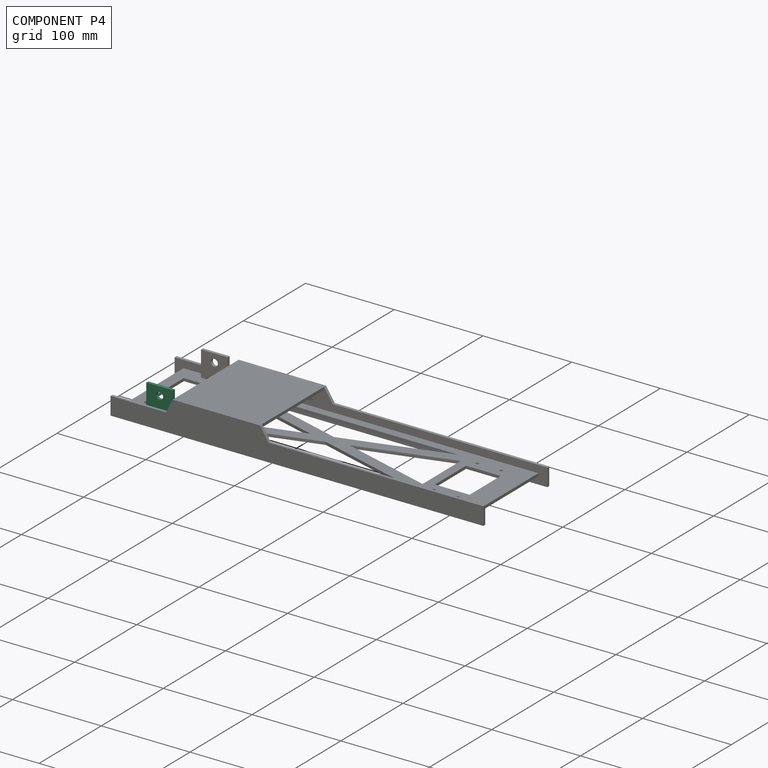
[diagram: component P4 — assembled]
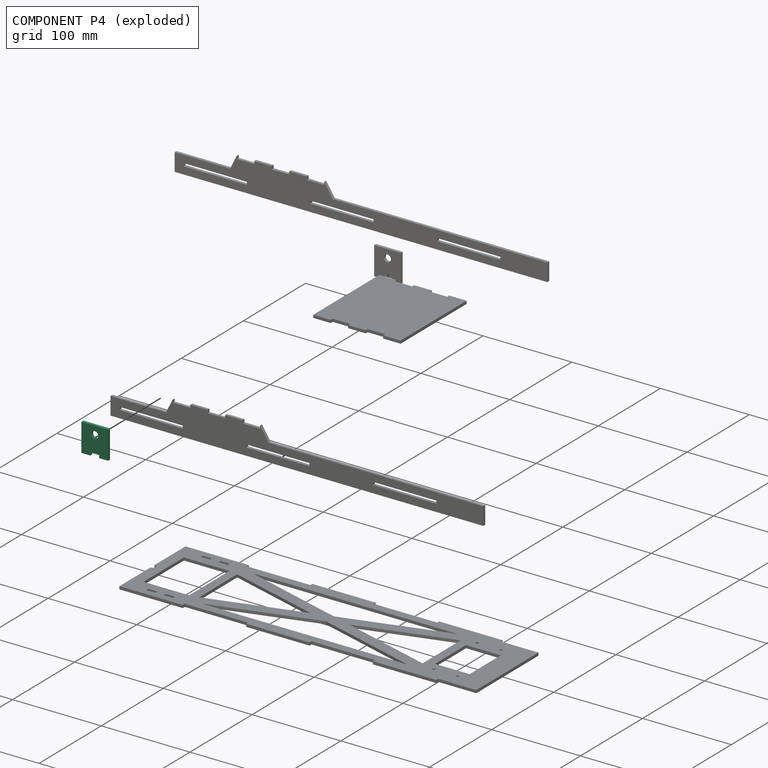
[diagram: component P4 — exploded]
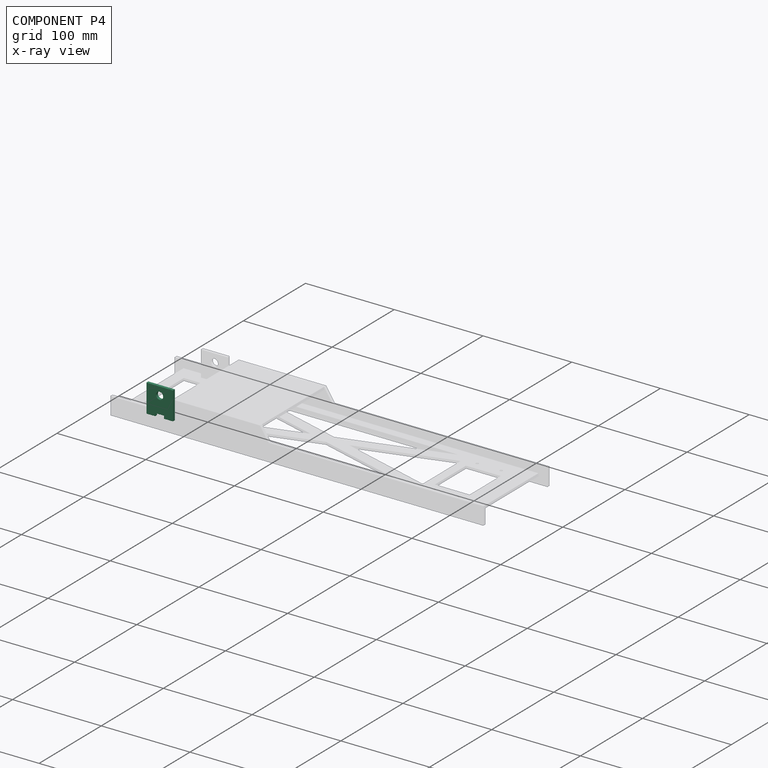
[diagram: component P4 — x-ray view]
COMPONENT P4 — same part as P0 (CADFS 00982036); its construction recipe is shown at P0.
Held by: FASTENED mate "Fastened 4" to P3.
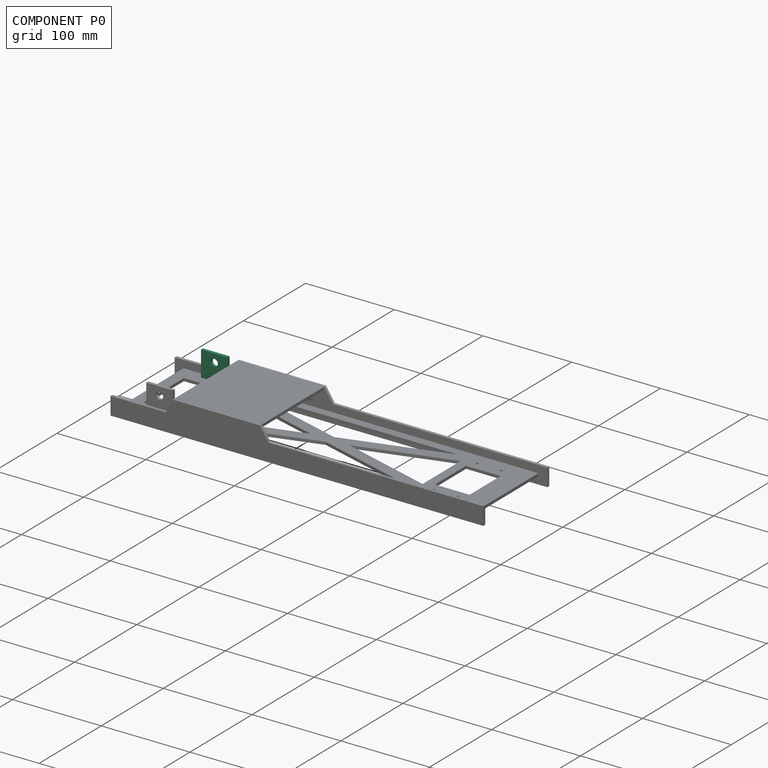
[diagram: component P0 — assembled]
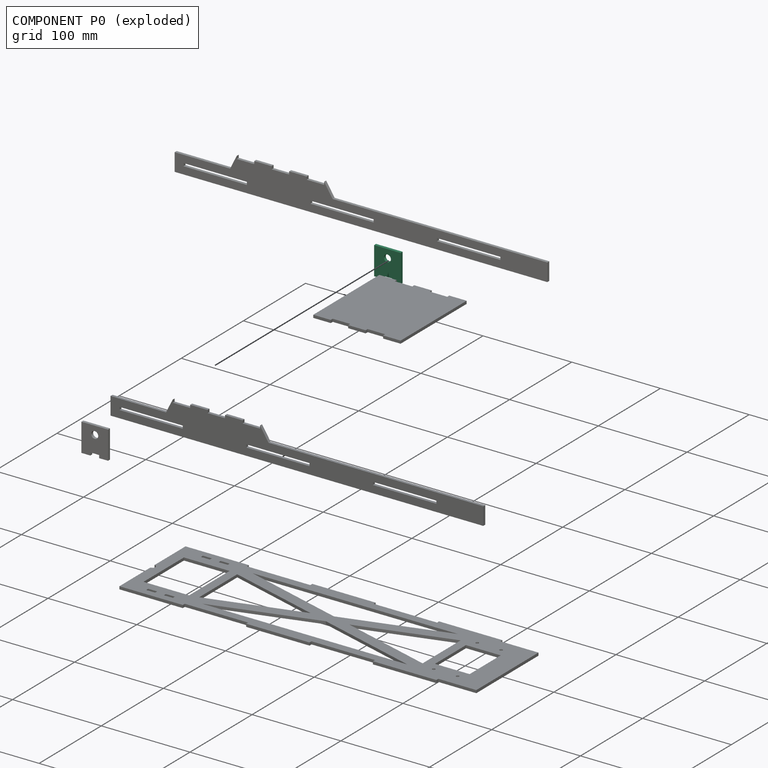
[diagram: component P0 — exploded]
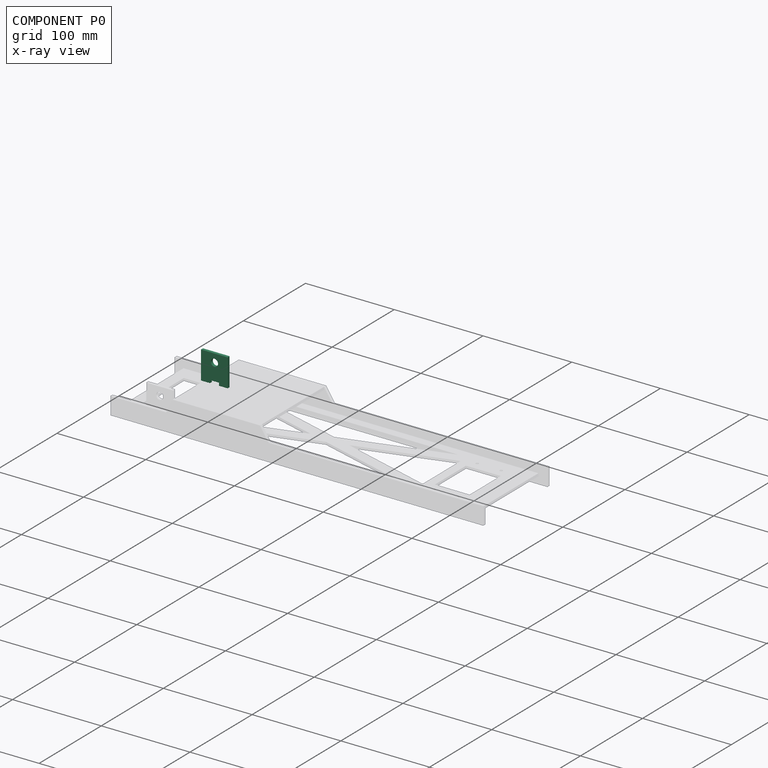
[diagram: component P0 — x-ray view]
COMPONENT P0 — recipe-attached (CADFS 00982036, mesh-verified: the recipe's output STEP matches this component's geometry to below the mesh-comparison resolution (tessellation chordal tolerance ~0.0657 mm)).
Held by: FASTENED mate "Fastened 3" to P3.
Construction recipe (FeatureScript — the CAD program that rebuilds this solid; sketch coordinates are in the units given by the * unit suffixes, e.g. mm):

FeatureScript 1511;
import(path : "onshape/std/geometry.fs", version : "1511.0");
import(path : "onshape/std/common.fs", version : "1511.0");
const mm = millimeter;
const VERTEX = EntityType.VERTEX;
const EDGE = EntityType.EDGE;
const FACE = EntityType.FACE;
const BODY = EntityType.BODY;
function v(x, y){return vector(x, y);}
function OD(order){return orderDisambiguation(order);}
function OSD(set){return originalSetDisambiguation(set);}
function TD(topology){return topologyDisambiguation(topology);}
function TDD(query){return trueDependencyDisambiguation(query);}
function sQuery(a, b, c) {return sketchEntityQuery(a, b, c);}

annotation { "Feature Type Name" : "Feature", "Feature Type Description" : "" }
export const myFeature = defineFeature(function(context is Context, id is Id, definition is map)
    precondition{}
    {
        {
            var Q0;
            Q0=qCreatedBy(makeId("Front.planeOp"),FACE);
            var sketch = newSketch(context, id + "F0", { "sketchPlane" : qUnion([Q0])});
            skLineSegment(sketch, "E0.top", {"start": v(15, 15.88) * mm, "end": v(-15, 15.87) * mm});
            skLineSegment(sketch, "E0.left", {"start": v(15, -15.87) * mm, "end": v(15, 15.88) * mm});
            skLineSegment(sketch, "E0.right", {"start": v(-15, -15.88) * mm, "end": v(-15, 15.88) * mm});
            skPoint(sketch, "E0.middle", {"position": v(0, 0) * mm});
            skCircle(sketch, "E1", {"center": v(0, 6.35) * mm, "radius": 3.96 * mm});
            skLineSegment(sketch, "E2", {"start": v(-15, -15.88) * mm, "end": v(-5, -15.87) * mm});
            skLineSegment(sketch, "E3", {"start": v(-5, -15.87) * mm, "end": v(-5, -12.7) * mm});
            skLineSegment(sketch, "E4", {"start": v(-5, -12.7) * mm, "end": v(5, -12.7) * mm});
            skLineSegment(sketch, "E5", {"start": v(5, -12.7) * mm, "end": v(5, -15.87) * mm});
            skLineSegment(sketch, "E6", {"start": v(5, -15.87) * mm, "end": v(15, -15.87) * mm});
            skSolve(sketch);
        }
        {
            var Q0;
            Q0 = qSketchRegion(id + "F0", true);
            extrude(context, id + "F1", {"entities" : qUnion([Q0]), "depth" : 3.17 * mm, "offsetDistance" : 25 * mm});
        }
    });
PROVENANCE & LICENSES
Assembly (occurrences, transforms, mates, per-part STEP geometry): AutoMate dataset, Zenodo record 7776208, CC0.
Construction recipes: CADFS (HuggingFace VladPyatov/CADFS, CC-BY-4.0, layered over the ABC dataset), FeatureScript reconstruction programs keyed by ABC model id.
Join: ABC meta listings map ABC model id -> Onshape documentId; within a shared document, parts are matched by geometric signature (bounding-box dims + volume at 0.1% relative tolerance, exact B-rep face/solid counts).
Verification: 6 of this assembly's 6 components carry a recipe attachment, and every attachment is mesh-verified: the CADFS STEP and the AutoMate member STEP were compared as meshes in their shared local frame (symmetric sampled-point-to-mesh distance); worst across the 6 attachments: below the mesh-comparison resolution (tessellation chordal tolerance ~0.632 mm) on a 421 mm part.
Renders: orthographic iso camera (az 35 / el 25); the floor grid conveys scale (grid pitch printed in each image; no ruler). In the exploded view each component is displaced by its stored offset vector: the offsets alone carry the explosion direction (mate normal/axis signs are not orientation cues and do not encode it), and separation distances are assigned per mate-chain, not proportionally to assembly-order depth.
